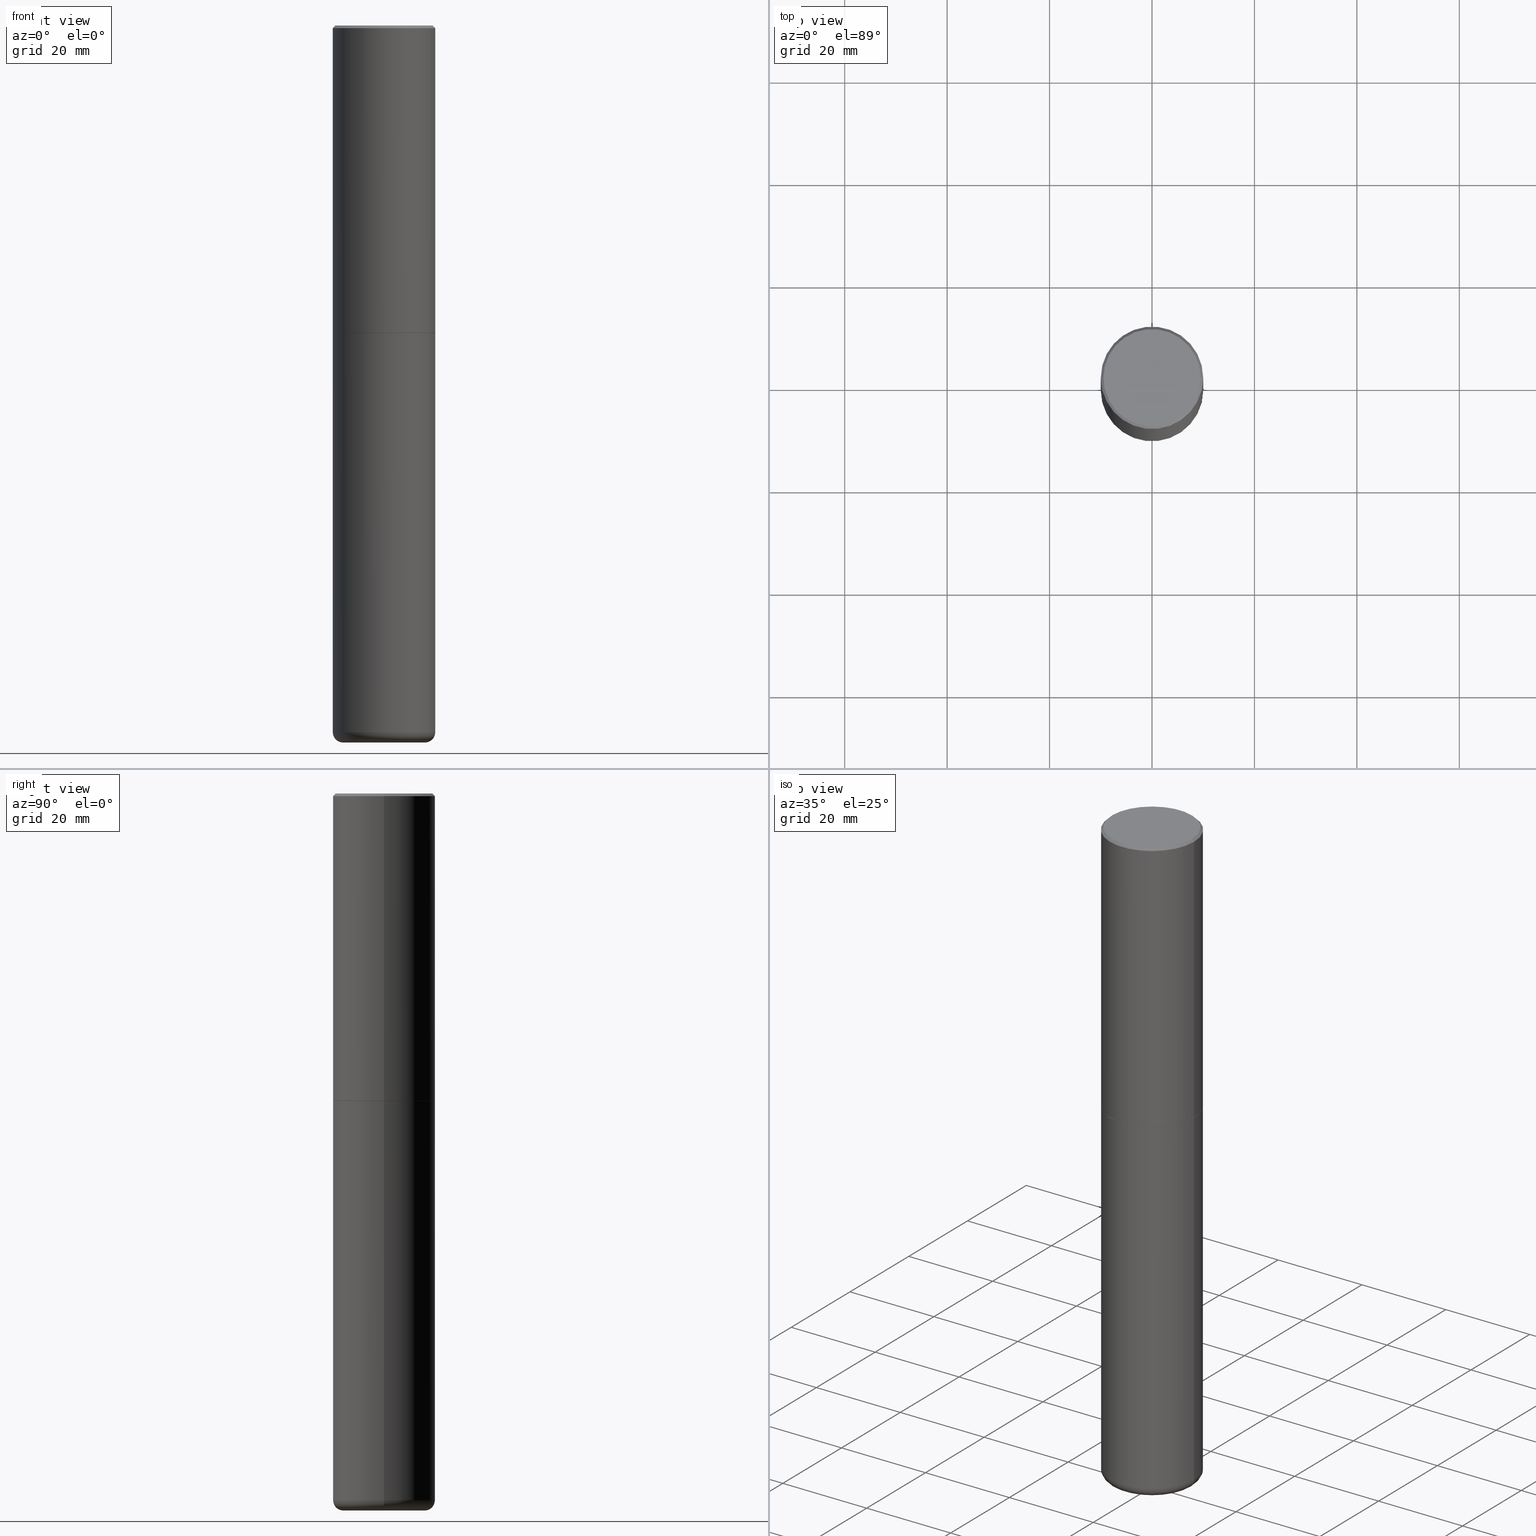
[diagram: canonical four-view strip — front | top / right | iso, engineering-drawing reading convention]
A machine part, canonical four-view strip (front | top / right | iso — engineering-drawing reading convention). The complete STEP part file that produces these views, byte-faithful:
ISO-10303-21;
HEADER;
FILE_DESCRIPTION (( 'STEP AP203' ),
    '1' );
FILE_NAME ('74855.STEP',
    '2024-05-02T19:24:18',
    ( '' ),
    ( '' ),
    'SwSTEP 2.0',
    'SolidWorks 2023',
    '' );
FILE_SCHEMA (( 'CONFIG_CONTROL_DESIGN' ));
ENDSEC;

DATA;
#1 = PERSON_AND_ORGANIZATION_ROLE ( 'design_owner' ) ;
#2 = EDGE_LOOP ( 'NONE', ( #64, #75, #69, #232 ) ) ;
#3 = EDGE_CURVE ( 'NONE', #255, #160, #9, .T. ) ;
#4 = DIRECTION ( 'NONE',  ( 0.7071067811865454633, -7.319954787623248157E-15, -0.7071067811865495711 ) ) ;
#5 = UNCERTAINTY_MEASURE_WITH_UNIT (LENGTH_MEASURE( 1.000000000000000082E-05 ), #202, 'distance_accuracy_value', 'NONE');
#6 = ADVANCED_BREP_SHAPE_REPRESENTATION ( '74855', ( #135, #137, #18 ), #203 ) ;
#7 =( NAMED_UNIT ( * ) SI_UNIT ( $, .STERADIAN. ) SOLID_ANGLE_UNIT ( ) );
#8 = ORIENTED_EDGE ( 'NONE', *, *, #52, .T. ) ;
#9 = CIRCLE ( 'NONE', #77, 0.3926999999999999935 ) ;
#10 = ADVANCED_FACE ( 'NONE', ( #67 ), #331, .T. ) ;
#11 = LOCAL_TIME ( 15, 24, 18.00000000000000000, #158 ) ;
#12 = APPROVAL_DATE_TIME ( #330, #224 ) ;
#13 = EDGE_CURVE ( 'NONE', #402, #133, #242, .T. ) ;
#14 = CARTESIAN_POINT ( 'NONE',  ( 1.328647657088446494E-28, -1.896956726206869229E-14, -5.433099999999999596 ) ) ;
#15 = DIRECTION ( 'NONE',  ( -2.445468806185136597E-29, 3.491481338843145583E-15, 1.000000000000000000 ) ) ;
#16 = DIMENSIONAL_EXPONENTS ( 1.000000000000000000, 0.000000000000000000, 0.000000000000000000, 0.000000000000000000, 0.000000000000000000, 0.000000000000000000, 0.000000000000000000 ) ;
#17 = CLOSED_SHELL ( 'NONE', ( #21, #50, #312, #307, #123, #373, #272, #262 ) ) ;
#18 = AXIS2_PLACEMENT_3D ( 'NONE', #36, #300, #416 ) ;
#19 = APPLICATION_CONTEXT ( 'configuration controlled 3d designs of mechanical parts and assemblies' ) ;
#20 = CARTESIAN_POINT ( 'NONE',  ( 1.347893496593123646E-28, -1.924434684343564878E-14, -5.511800000000000033 ) ) ;
#21 = ADVANCED_FACE ( 'NONE', ( #328 ), #157, .T. ) ;
#22 = LINE ( 'NONE', #44, #201 ) ;
#23 = FACE_OUTER_BOUND ( 'NONE', #259, .T. ) ;
#24 = CARTESIAN_POINT ( 'NONE',  ( 4.890937612370294178E-31, -6.982962677686321191E-17, -0.02000000000000008715 ) ) ;
#25 = APPROVAL_PERSON_ORGANIZATION ( #357, #197, #58 ) ;
#26 = FACE_OUTER_BOUND ( 'NONE', #34, .T. ) ;
#27 = COORDINATED_UNIVERSAL_TIME_OFFSET ( 5, 0, .BEHIND. ) ;
#28 = DIRECTION ( 'NONE',  ( 1.000000000000000000, -6.982962677686267499E-15, 0.000000000000000000 ) ) ;
#29 = ORIENTED_EDGE ( 'NONE', *, *, #322, .T. ) ;
#30 = APPLICATION_PROTOCOL_DEFINITION ( 'international standard', 'config_control_design', 1994, #19 ) ;
#31 = CIRCLE ( 'NONE', #270, 0.3937000000000002720 ) ;
#32 = CYLINDRICAL_SURFACE ( 'NONE', #289, 0.3937000000000002164 ) ;
#33 = DATE_AND_TIME ( #227, #284 ) ;
#34 = EDGE_LOOP ( 'NONE', ( #141, #226 ) ) ;
#35 = CARTESIAN_POINT ( 'NONE',  ( 5.776686413970529753E-29, -8.247577218615279626E-15, -2.362200000000000077 ) ) ;
#36 = CARTESIAN_POINT ( 'NONE',  ( 0.000000000000000000, 0.000000000000000000, 0.000000000000000000 ) ) ;
#37 = VECTOR ( 'NONE', #296, 39.37007874015748143 ) ;
#38 = DIRECTION ( 'NONE',  ( -2.445468806185136597E-29, 3.491481338843145583E-15, 1.000000000000000000 ) ) ;
#39 = VERTEX_POINT ( 'NONE', #360 ) ;
#40 = APPLICATION_CONTEXT ( 'configuration controlled 3d designs of mechanical parts and assemblies' ) ;
#41 = ORIENTED_EDGE ( 'NONE', *, *, #48, .T. ) ;
#42 = EDGE_LOOP ( 'NONE', ( #370, #29, #100, #400 ) ) ;
#43 = DIRECTION ( 'NONE',  ( 1.000000000000000000, -6.982962677686266711E-15, 0.000000000000000000 ) ) ;
#44 = CARTESIAN_POINT ( 'NONE',  ( -0.3937000000000002164, 2.797406750687515970E-15, -1.936584745033357576E-29 ) ) ;
#45 = AXIS2_PLACEMENT_3D ( 'NONE', #339, #146, #277 ) ;
#46 = CARTESIAN_POINT ( 'NONE',  ( -0.3736999999999999211, 2.644447966039789453E-15, 2.262311619753034352E-16 ) ) ;
#47 = PRODUCT_DEFINITION_FORMATION_WITH_SPECIFIED_SOURCE ( 'ANY', '', #213, .NOT_KNOWN. ) ;
#48 = EDGE_CURVE ( 'NONE', #258, #304, #314, .T. ) ;
#49 = DIRECTION ( 'NONE',  ( -1.000000000000000000, 6.982962677686266711E-15, 0.000000000000000000 ) ) ;
#50 = ADVANCED_FACE ( 'NONE', ( #320 ), #32, .T. ) ;
#51 = CARTESIAN_POINT ( 'NONE',  ( -0.3937000000000002164, -1.617216051138117513E-14, -5.433099999999999596 ) ) ;
#52 = EDGE_CURVE ( 'NONE', #234, #104, #306, .T. ) ;
#53 = FACE_OUTER_BOUND ( 'NONE', #2, .T. ) ;
#54 = AXIS2_PLACEMENT_3D ( 'NONE', #24, #411, #117 ) ;
#55 = CARTESIAN_POINT ( 'NONE',  ( 0.3937000000000000499, -1.099676962482036284E-14, -2.362200000000000077 ) ) ;
#56 = CARTESIAN_POINT ( 'NONE',  ( 5.776686413970529753E-29, -8.247577218615279626E-15, -2.362200000000000077 ) ) ;
#57 = FACE_OUTER_BOUND ( 'NONE', #363, .T. ) ;
#58 = APPROVAL_ROLE ( '' ) ;
#59 = DIRECTION ( 'NONE',  ( -2.445468806185136597E-29, 3.491481338843145583E-15, 1.000000000000000000 ) ) ;
#60 = MECHANICAL_CONTEXT ( 'NONE', #19, 'mechanical' ) ;
#61 = CIRCLE ( 'NONE', #143, 0.3937000000000001054 ) ;
#62 = CC_DESIGN_PERSON_AND_ORGANIZATION_ASSIGNMENT ( #395, #65, ( #174 ) ) ;
#63 = CIRCLE ( 'NONE', #250, 0.3150000000000000577 ) ;
#64 = ORIENTED_EDGE ( 'NONE', *, *, #399, .F. ) ;
#65 = PERSON_AND_ORGANIZATION_ROLE ( 'classification_officer' ) ;
#66 = EDGE_LOOP ( 'NONE', ( #393, #418, #74, #298 ) ) ;
#67 = FACE_OUTER_BOUND ( 'NONE', #341, .T. ) ;
#68 = CALENDAR_DATE ( 2024, 2, 5 ) ;
#69 = ORIENTED_EDGE ( 'NONE', *, *, #176, .T. ) ;
#70 = PERSON_AND_ORGANIZATION ( #321, #257 ) ;
#71 = AXIS2_PLACEMENT_3D ( 'NONE', #107, #337, #178 ) ;
#72 = CONICAL_SURFACE ( 'NONE', #54, 0.3937000000000001054, 0.7853981633974453924 ) ;
#73 = ORIENTED_EDGE ( 'NONE', *, *, #184, .T. ) ;
#74 = ORIENTED_EDGE ( 'NONE', *, *, #113, .T. ) ;
#75 = ORIENTED_EDGE ( 'NONE', *, *, #209, .T. ) ;
#76 = ORIENTED_EDGE ( 'NONE', *, *, #52, .F. ) ;
#77 = AXIS2_PLACEMENT_3D ( 'NONE', #200, #299, #228 ) ;
#78 = ADVANCED_FACE ( 'NONE', ( #346 ), #407, .T. ) ;
#79 = CARTESIAN_POINT ( 'NONE',  ( 0.000000000000000000, 0.000000000000000000, 0.000000000000000000 ) ) ;
#80 = DIRECTION ( 'NONE',  ( -2.445468806185136597E-29, 3.491481338843145583E-15, 1.000000000000000000 ) ) ;
#81 = ORIENTED_EDGE ( 'NONE', *, *, #301, .T. ) ;
#82 = CC_DESIGN_PERSON_AND_ORGANIZATION_ASSIGNMENT ( #125, #364, ( #371 ) ) ;
#83 = DIRECTION ( 'NONE',  ( -2.445468806185136877E-29, 3.491481338843145188E-15, 1.000000000000000000 ) ) ;
#84 = DIRECTION ( 'NONE',  ( -2.445468806185136597E-29, 3.491481338843145583E-15, 1.000000000000000000 ) ) ;
#85 = CARTESIAN_POINT ( 'NONE',  ( -5.532412495976664402E-45, 7.898818803016371119E-31, 2.262311619753217762E-16 ) ) ;
#86 = VECTOR ( 'NONE', #225, 39.37007874015748143 ) ;
#87 = PLANE ( 'NONE',  #204 ) ;
#88 = CARTESIAN_POINT ( 'NONE',  ( 5.776686413970529753E-29, -8.247577218615279626E-15, -2.362200000000000077 ) ) ;
#89 = DIRECTION ( 'NONE',  ( -1.000000000000000000, 7.105427357600995548E-15, 0.000000000000000000 ) ) ;
#90 = DIRECTION ( 'NONE',  ( 1.000000000000000000, -6.982962677686265922E-15, 0.000000000000000000 ) ) ;
#91 = AXIS2_PLACEMENT_3D ( 'NONE', #380, #15, #215 ) ;
#92 = DIRECTION ( 'NONE',  ( 1.000000000000000000, -6.982962677686265922E-15, 4.876176775795935793E-29 ) ) ;
#93 = CIRCLE ( 'NONE', #108, 0.3736999999999999211 ) ;
#94 = ORIENTED_EDGE ( 'NONE', *, *, #99, .T. ) ;
#95 = ADVANCED_FACE ( 'NONE', ( #281 ), #275, .T. ) ;
#96 = PERSON_AND_ORGANIZATION ( #321, #257 ) ;
#97 = COORDINATED_UNIVERSAL_TIME_OFFSET ( 5, 0, .BEHIND. ) ;
#98 = APPROVAL_STATUS ( 'not_yet_approved' ) ;
#99 = EDGE_CURVE ( 'NONE', #133, #177, #22, .T. ) ;
#100 = ORIENTED_EDGE ( 'NONE', *, *, #13, .F. ) ;
#101 = PLANE ( 'NONE',  #332 ) ;
#102 = AXIS2_PLACEMENT_3D ( 'NONE', #189, #287, #313 ) ;
#103 = LOCAL_TIME ( 15, 24, 18.00000000000000000, #97 ) ;
#104 = VERTEX_POINT ( 'NONE', #144 ) ;
#105 = ORIENTED_EDGE ( 'NONE', *, *, #366, .F. ) ;
#106 = AXIS2_PLACEMENT_3D ( 'NONE', #244, #38, #185 ) ;
#107 = CARTESIAN_POINT ( 'NONE',  ( 0.3150000000000000577, -2.116920050553986882E-14, -5.433099999999999596 ) ) ;
#108 = AXIS2_PLACEMENT_3D ( 'NONE', #181, #248, #379 ) ;
#109 = LINE ( 'NONE', #342, #369 ) ;
#110 = DIRECTION ( 'NONE',  ( 1.000000000000000000, -6.982962677686266711E-15, 0.000000000000000000 ) ) ;
#111 = FACE_OUTER_BOUND ( 'NONE', #241, .T. ) ;
#112 = AXIS2_PLACEMENT_3D ( 'NONE', #166, #295, #392 ) ;
#113 = EDGE_CURVE ( 'NONE', #160, #402, #109, .T. ) ;
#114 = DIRECTION ( 'NONE',  ( 2.445468806185136597E-29, -3.491481338843145583E-15, -1.000000000000000000 ) ) ;
#115 = DIRECTION ( 'NONE',  ( -2.445468806185136597E-29, 3.491481338843145583E-15, 1.000000000000000000 ) ) ;
#116 = CARTESIAN_POINT ( 'NONE',  ( -0.3150000000000000577, -1.673135764442437708E-14, -5.433099999999999596 ) ) ;
#117 = DIRECTION ( 'NONE',  ( -1.000000000000000000, 6.982962677686266711E-15, 0.000000000000000000 ) ) ;
#118 = CC_DESIGN_PERSON_AND_ORGANIZATION_ASSIGNMENT ( #263, #193, ( #47 ) ) ;
#119 = DIRECTION ( 'NONE',  ( -2.445468806185136597E-29, 3.491481338843145583E-15, 1.000000000000000000 ) ) ;
#120 = DIRECTION ( 'NONE',  ( -2.445468806185136597E-29, 3.491481338843145583E-15, 1.000000000000000000 ) ) ;
#121 = AXIS2_PLACEMENT_3D ( 'NONE', #79, #214, #378 ) ;
#122 = CIRCLE ( 'NONE', #334, 0.3926999999999999935 ) ;
#123 = ADVANCED_FACE ( 'NONE', ( #57 ), #247, .T. ) ;
#124 = ORIENTED_EDGE ( 'NONE', *, *, #48, .F. ) ;
#125 = PERSON_AND_ORGANIZATION ( #321, #257 ) ;
#126 = ORIENTED_EDGE ( 'NONE', *, *, #161, .F. ) ;
#127 = PERSON_AND_ORGANIZATION_ROLE ( 'creator' ) ;
#128 = ORIENTED_EDGE ( 'NONE', *, *, #176, .F. ) ;
#129 = DATE_TIME_ROLE ( 'classification_date' ) ;
#130 = EDGE_LOOP ( 'NONE', ( #365, #326, #8, #194 ) ) ;
#131 = CONICAL_SURFACE ( 'NONE', #195, 0.3937000000000001054, 0.7853981633974453924 ) ;
#132 = CARTESIAN_POINT ( 'NONE',  ( 1.347893496593123646E-28, -1.924434684343564878E-14, -5.511800000000000033 ) ) ;
#133 = VERTEX_POINT ( 'NONE', #182 ) ;
#134 = ORIENTED_EDGE ( 'NONE', *, *, #209, .F. ) ;
#135 = MANIFOLD_SOLID_BREP ( 'Body-Move/Copy2[1]', #303 ) ;
#136 = CIRCLE ( 'NONE', #179, 0.07870000000000024198 ) ;
#137 = MANIFOLD_SOLID_BREP ( 'Body-Move/Copy2[2]', #17 ) ;
#138 = APPROVAL_PERSON_ORGANIZATION ( #294, #293, #199 ) ;
#139 = CC_DESIGN_PERSON_AND_ORGANIZATION_ASSIGNMENT ( #96, #127, ( #47 ) ) ;
#140 = DIRECTION ( 'NONE',  ( -2.445468806185136597E-29, 3.491481338843145583E-15, 1.000000000000000000 ) ) ;
#141 = ORIENTED_EDGE ( 'NONE', *, *, #237, .T. ) ;
#142 = PRODUCT_RELATED_PRODUCT_CATEGORY ( 'detail', '', ( #213 ) ) ;
#143 = AXIS2_PLACEMENT_3D ( 'NONE', #14, #372, #43 ) ;
#144 = CARTESIAN_POINT ( 'NONE',  ( 0.3937000000000002164, -2.171875966827377866E-14, -5.433099999999999596 ) ) ;
#145 = VECTOR ( 'NONE', #406, 39.37007874015748143 ) ;
#146 = DIRECTION ( 'NONE',  ( -2.445468806185136597E-29, 3.491481338843145583E-15, 1.000000000000000000 ) ) ;
#147 = CARTESIAN_POINT ( 'NONE',  ( 5.774240945164344150E-29, -8.244085737276435042E-15, -2.361199999999999743 ) ) ;
#148 = CARTESIAN_POINT ( 'NONE',  ( 5.776686413970529753E-29, -8.247577218615279626E-15, -2.362200000000000077 ) ) ;
#149 = DIRECTION ( 'NONE',  ( -2.445468806185136877E-29, 3.491481338843145188E-15, 1.000000000000000000 ) ) ;
#150 = CARTESIAN_POINT ( 'NONE',  ( -0.3926999999999999935, -5.451977440937141868E-15, -2.362200000000000077 ) ) ;
#151 = ADVANCED_FACE ( 'NONE', ( #274 ), #164, .T. ) ;
#152 = DIRECTION ( 'NONE',  ( 1.000000000000000000, -6.982962677686266711E-15, 4.877734241229876808E-29 ) ) ;
#153 = DIRECTION ( 'NONE',  ( -2.445468806185136597E-29, 3.491481338843145583E-15, 1.000000000000000000 ) ) ;
#154 = PLANE ( 'NONE',  #343 ) ;
#155 = APPROVAL_STATUS ( 'not_yet_approved' ) ;
#156 = ORIENTED_EDGE ( 'NONE', *, *, #170, .T. ) ;
#157 = CONICAL_SURFACE ( 'NONE', #256, 0.3926999999999999935, 0.7853981633975507526 ) ;
#158 = COORDINATED_UNIVERSAL_TIME_OFFSET ( 5, 0, .BEHIND. ) ;
#159 = DATE_TIME_ROLE ( 'creation_date' ) ;
#160 = VERTEX_POINT ( 'NONE', #305 ) ;
#161 = EDGE_CURVE ( 'NONE', #177, #210, #186, .T. ) ;
#162 = VERTEX_POINT ( 'NONE', #340 ) ;
#163 = DIRECTION ( 'NONE',  ( 0.7071067811866199593, -2.468850131083015945E-15, 0.7071067811864750752 ) ) ;
#164 = TOROIDAL_SURFACE ( 'NONE', #45, 0.3150000000000000577, 0.07870000000000024198 ) ;
#165 =( NAMED_UNIT ( * ) PLANE_ANGLE_UNIT ( ) SI_UNIT ( $, .RADIAN. ) );
#166 = CARTESIAN_POINT ( 'NONE',  ( 0.000000000000000000, 0.000000000000000000, 0.000000000000000000 ) ) ;
#167 = FACE_OUTER_BOUND ( 'NONE', #198, .T. ) ;
#168 = CC_DESIGN_APPROVAL ( #224, ( #174 ) ) ;
#169 = ORIENTED_EDGE ( 'NONE', *, *, #273, .T. ) ;
#170 = EDGE_CURVE ( 'NONE', #234, #162, #404, .T. ) ;
#171 = LINE ( 'NONE', #216, #239 ) ;
#172 = CARTESIAN_POINT ( 'NONE',  ( 0.000000000000000000, 0.000000000000000000, 0.000000000000000000 ) ) ;
#173 = ADVANCED_FACE ( 'NONE', ( #167 ), #101, .T. ) ;
#174 = SECURITY_CLASSIFICATION ( '', '', #391 ) ;
#175 = ORIENTED_EDGE ( 'NONE', *, *, #349, .F. ) ;
#176 = EDGE_CURVE ( 'NONE', #210, #177, #218, .T. ) ;
#177 = VERTEX_POINT ( 'NONE', #253 ) ;
#178 = DIRECTION ( 'NONE',  ( 1.000000000000000000, -6.982962677686273810E-15, 0.000000000000000000 ) ) ;
#179 = AXIS2_PLACEMENT_3D ( 'NONE', #116, #382, #89 ) ;
#180 = AXIS2_PLACEMENT_3D ( 'NONE', #88, #153, #311 ) ;
#181 = CARTESIAN_POINT ( 'NONE',  ( -5.532412495976664402E-45, 7.898818803016371119E-31, 2.262311619753217762E-16 ) ) ;
#182 = CARTESIAN_POINT ( 'NONE',  ( -0.3937000000000002720, -1.359550931339130834E-15, -2.361199999999999743 ) ) ;
#183 = LINE ( 'NONE', #351, #86 ) ;
#184 = EDGE_CURVE ( 'NONE', #162, #325, #136, .T. ) ;
#185 = DIRECTION ( 'NONE',  ( 1.000000000000000000, -6.982962677686266711E-15, 0.000000000000000000 ) ) ;
#186 = CIRCLE ( 'NONE', #106, 0.3937000000000001054 ) ;
#187 =( LENGTH_UNIT ( ) NAMED_UNIT ( * ) SI_UNIT ( $, .METRE. ) );
#188 = DIRECTION ( 'NONE',  ( -2.445468806185136597E-29, 3.491481338843145583E-15, 1.000000000000000000 ) ) ;
#189 = CARTESIAN_POINT ( 'NONE',  ( 2.609533152651356620E-15, 0.3736999999999999211, -1.191650995338022328E-15 ) ) ;
#190 = DIRECTION ( 'NONE',  ( -2.445468806185136597E-29, 3.491481338843145583E-15, 1.000000000000000000 ) ) ;
#191 = APPROVAL_DATE_TIME ( #33, #293 ) ;
#192 = DIRECTION ( 'NONE',  ( 1.000000000000000000, -6.982962677686265133E-15, 0.000000000000000000 ) ) ;
#193 = PERSON_AND_ORGANIZATION_ROLE ( 'design_supplier' ) ;
#194 = ORIENTED_EDGE ( 'NONE', *, *, #230, .F. ) ;
#195 = AXIS2_PLACEMENT_3D ( 'NONE', #278, #114, #49 ) ;
#196 = CALENDAR_DATE ( 2024, 2, 5 ) ;
#197 = APPROVAL ( #155, 'UNSPECIFIED' ) ;
#198 = EDGE_LOOP ( 'NONE', ( #236, #376 ) ) ;
#199 = APPROVAL_ROLE ( '' ) ;
#200 = CARTESIAN_POINT ( 'NONE',  ( 5.776686413970529753E-29, -8.247577218615279626E-15, -2.362200000000000077 ) ) ;
#201 = VECTOR ( 'NONE', #149, 39.37007874015748143 ) ;
#202 =( CONVERSION_BASED_UNIT ( 'INCH', #233 ) LENGTH_UNIT ( ) NAMED_UNIT ( #16 ) );
#203 =( GEOMETRIC_REPRESENTATION_CONTEXT ( 3 ) GLOBAL_UNCERTAINTY_ASSIGNED_CONTEXT ( ( #5 ) ) GLOBAL_UNIT_ASSIGNED_CONTEXT ( ( #202, #165, #7 ) ) REPRESENTATION_CONTEXT ( 'NONE', 'WORKASPACE' ) );
#204 = AXIS2_PLACEMENT_3D ( 'NONE', #219, #381, #221 ) ;
#205 = ORIENTED_EDGE ( 'NONE', *, *, #366, .T. ) ;
#206 = EDGE_CURVE ( 'NONE', #402, #210, #350, .T. ) ;
#207 = CARTESIAN_POINT ( 'NONE',  ( -0.3937000000000001054, 2.797406750687515181E-15, -1.936584745033357016E-29 ) ) ;
#208 = ORIENTED_EDGE ( 'NONE', *, *, #13, .T. ) ;
#209 = EDGE_CURVE ( 'NONE', #39, #210, #171, .T. ) ;
#210 = VERTEX_POINT ( 'NONE', #415 ) ;
#211 = CIRCLE ( 'NONE', #276, 0.3937000000000001054 ) ;
#212 = ORIENTED_EDGE ( 'NONE', *, *, #161, .T. ) ;
#213 = PRODUCT ( '74855', '74855', '', ( #60 ) ) ;
#214 = DIRECTION ( 'NONE',  ( -2.445468806185136597E-29, 3.491481338843145583E-15, 1.000000000000000000 ) ) ;
#215 = DIRECTION ( 'NONE',  ( 1.000000000000000000, -6.982962677686266711E-15, 4.876176775795935793E-29 ) ) ;
#216 = CARTESIAN_POINT ( 'NONE',  ( 0.3937000000000001054, -2.770807688499516128E-15, -0.02000000000000008715 ) ) ;
#217 = FACE_OUTER_BOUND ( 'NONE', #66, .T. ) ;
#218 = CIRCLE ( 'NONE', #223, 0.3937000000000001054 ) ;
#219 = CARTESIAN_POINT ( 'NONE',  ( 5.776686413970529753E-29, -8.247577218615279626E-15, -2.362200000000000077 ) ) ;
#220 = CC_DESIGN_DATE_AND_TIME_ASSIGNMENT ( #297, #159, ( #371 ) ) ;
#221 = DIRECTION ( 'NONE',  ( -1.000000000000000000, 6.982962677686265922E-15, -4.876176775795935793E-29 ) ) ;
#222 = PLANE ( 'NONE',  #102 ) ;
#223 = AXIS2_PLACEMENT_3D ( 'NONE', #384, #188, #316 ) ;
#224 = APPROVAL ( #98, 'UNSPECIFIED' ) ;
#225 = DIRECTION ( 'NONE',  ( -0.7071067811865454633, 2.468850131082235367E-15, -0.7071067811865495711 ) ) ;
#226 = ORIENTED_EDGE ( 'NONE', *, *, #399, .T. ) ;
#227 = CALENDAR_DATE ( 2024, 2, 5 ) ;
#228 = DIRECTION ( 'NONE',  ( 1.000000000000000000, -6.982962677686265133E-15, 0.000000000000000000 ) ) ;
#229 = ORIENTED_EDGE ( 'NONE', *, *, #206, .F. ) ;
#230 = EDGE_CURVE ( 'NONE', #325, #104, #61, .T. ) ;
#231 = CIRCLE ( 'NONE', #386, 0.3736999999999999211 ) ;
#232 = ORIENTED_EDGE ( 'NONE', *, *, #301, .F. ) ;
#233 = LENGTH_MEASURE_WITH_UNIT ( LENGTH_MEASURE( 0.02539999999999999897 ), #187 );
#234 = VERTEX_POINT ( 'NONE', #280 ) ;
#235 = APPROVAL_ROLE ( '' ) ;
#236 = ORIENTED_EDGE ( 'NONE', *, *, #170, .F. ) ;
#237 = EDGE_CURVE ( 'NONE', #397, #39, #231, .T. ) ;
#238 = ORIENTED_EDGE ( 'NONE', *, *, #3, .F. ) ;
#239 = VECTOR ( 'NONE', #4, 39.37007874015748143 ) ;
#240 = LOCAL_TIME ( 15, 24, 18.00000000000000000, #27 ) ;
#241 = EDGE_LOOP ( 'NONE', ( #292, #238 ) ) ;
#242 = CIRCLE ( 'NONE', #362, 0.3937000000000002720 ) ;
#243 = EDGE_LOOP ( 'NONE', ( #156, #73, #271, #76 ) ) ;
#244 = CARTESIAN_POINT ( 'NONE',  ( 4.890937612370294178E-31, -6.982962677686321191E-17, -0.02000000000000008715 ) ) ;
#245 = CARTESIAN_POINT ( 'NONE',  ( -0.3926999999999999935, -5.457275895285365059E-15, -2.362200000000000077 ) ) ;
#246 = EDGE_CURVE ( 'NONE', #325, #304, #288, .T. ) ;
#247 = CYLINDRICAL_SURFACE ( 'NONE', #91, 0.3937000000000002164 ) ;
#248 = DIRECTION ( 'NONE',  ( -2.445468806185136597E-29, 3.491481338843145583E-15, 1.000000000000000000 ) ) ;
#249 = DIRECTION ( 'NONE',  ( 1.000000000000000000, -6.982962677686273810E-15, 0.000000000000000000 ) ) ;
#250 = AXIS2_PLACEMENT_3D ( 'NONE', #20, #347, #412 ) ;
#251 = LINE ( 'NONE', #245, #145 ) ;
#252 = CARTESIAN_POINT ( 'NONE',  ( 0.3937000000000001054, -2.749192406205084005E-15, 1.919750796630860452E-29 ) ) ;
#253 = CARTESIAN_POINT ( 'NONE',  ( -0.3937000000000001054, 2.679362779428220707E-15, -0.02000000000000008715 ) ) ;
#254 = DIRECTION ( 'NONE',  ( -2.445468806185136597E-29, 3.491481338843145583E-15, 1.000000000000000000 ) ) ;
#255 = VERTEX_POINT ( 'NONE', #150 ) ;
#256 = AXIS2_PLACEMENT_3D ( 'NONE', #56, #120, #192 ) ;
#257 = ORGANIZATION ( 'UNSPECIFIED', 'UNSPECIFIED', '' ) ;
#258 = VERTEX_POINT ( 'NONE', #55 ) ;
#259 = EDGE_LOOP ( 'NONE', ( #134, #266, #81, #212 ) ) ;
#260 = DATE_AND_TIME ( #291, #11 ) ;
#261 = DIRECTION ( 'NONE',  ( 1.000000000000000000, -6.982962677686265922E-15, 0.000000000000000000 ) ) ;
#262 = ADVANCED_FACE ( 'NONE', ( #26 ), #222, .F. ) ;
#263 = PERSON_AND_ORGANIZATION ( #321, #257 ) ;
#264 = ORIENTED_EDGE ( 'NONE', *, *, #348, .T. ) ;
#265 = PERSON_AND_ORGANIZATION ( #321, #257 ) ;
#266 = ORIENTED_EDGE ( 'NONE', *, *, #237, .F. ) ;
#267 = DESIGN_CONTEXT ( 'detailed design', #40, 'design' ) ;
#268 = CALENDAR_DATE ( 2024, 2, 5 ) ;
#269 = EDGE_LOOP ( 'NONE', ( #208, #94, #128, #229 ) ) ;
#270 = AXIS2_PLACEMENT_3D ( 'NONE', #147, #254, #90 ) ;
#271 = ORIENTED_EDGE ( 'NONE', *, *, #348, .F. ) ;
#272 = ADVANCED_FACE ( 'NONE', ( #111 ), #154, .F. ) ;
#273 = EDGE_CURVE ( 'NONE', #133, #402, #31, .T. ) ;
#274 = FACE_OUTER_BOUND ( 'NONE', #243, .T. ) ;
#275 = TOROIDAL_SURFACE ( 'NONE', #410, 0.3150000000000000577, 0.07870000000000024198 ) ;
#276 = AXIS2_PLACEMENT_3D ( 'NONE', #413, #119, #110 ) ;
#277 = DIRECTION ( 'NONE',  ( 1.000000000000000000, -6.982962677686263555E-15, 4.883557194083111219E-29 ) ) ;
#278 = CARTESIAN_POINT ( 'NONE',  ( 4.890937612370294178E-31, -6.982962677686321191E-17, -0.02000000000000008715 ) ) ;
#279 = CARTESIAN_POINT ( 'NONE',  ( 1.347893496593123646E-28, -1.924434684343564878E-14, -5.511800000000000033 ) ) ;
#280 = CARTESIAN_POINT ( 'NONE',  ( 0.3150000000000000577, -2.144398008690682532E-14, -5.511800000000000033 ) ) ;
#281 = FACE_OUTER_BOUND ( 'NONE', #130, .T. ) ;
#282 = FACE_OUTER_BOUND ( 'NONE', #368, .T. ) ;
#283 = DIRECTION ( 'NONE',  ( -2.438088387897960049E-29, 3.491481338843145188E-15, 1.000000000000000000 ) ) ;
#284 = LOCAL_TIME ( 15, 24, 18.00000000000000000, #324 ) ;
#285 = DIRECTION ( 'NONE',  ( -1.000000000000000000, 6.982962677686265922E-15, -4.876176775795935793E-29 ) ) ;
#286 = DIRECTION ( 'NONE',  ( -2.445468806185136597E-29, 3.491481338843145583E-15, 1.000000000000000000 ) ) ;
#287 = DIRECTION ( 'NONE',  ( 2.438088387897960049E-29, -3.491481338843145188E-15, -1.000000000000000000 ) ) ;
#288 = LINE ( 'NONE', #207, #417 ) ;
#289 = AXIS2_PLACEMENT_3D ( 'NONE', #172, #140, #336 ) ;
#290 = CC_DESIGN_APPROVAL ( #197, ( #47 ) ) ;
#291 = CALENDAR_DATE ( 2024, 2, 5 ) ;
#292 = ORIENTED_EDGE ( 'NONE', *, *, #361, .F. ) ;
#293 = APPROVAL ( #319, 'UNSPECIFIED' ) ;
#294 = PERSON_AND_ORGANIZATION ( #321, #257 ) ;
#295 = DIRECTION ( 'NONE',  ( -2.445468806185136597E-29, 3.491481338843145583E-15, 1.000000000000000000 ) ) ;
#296 = DIRECTION ( 'NONE',  ( -2.445468806185136877E-29, 3.491481338843145188E-15, 1.000000000000000000 ) ) ;
#297 = DATE_AND_TIME ( #268, #240 ) ;
#298 = ORIENTED_EDGE ( 'NONE', *, *, #273, .F. ) ;
#299 = DIRECTION ( 'NONE',  ( -2.445468806185136597E-29, 3.491481338843145583E-15, 1.000000000000000000 ) ) ;
#300 = DIRECTION ( 'NONE',  ( 0.000000000000000000, 0.000000000000000000, 1.000000000000000000 ) ) ;
#301 = EDGE_CURVE ( 'NONE', #397, #177, #183, .T. ) ;
#302 = CC_DESIGN_APPROVAL ( #293, ( #371 ) ) ;
#303 = CLOSED_SHELL ( 'NONE', ( #10, #151, #409, #78, #95, #173 ) ) ;
#304 = VERTEX_POINT ( 'NONE', #315 ) ;
#305 = CARTESIAN_POINT ( 'NONE',  ( 0.3926999999999999935, -1.098978666214267525E-14, -2.362200000000000077 ) ) ;
#306 = CIRCLE ( 'NONE', #71, 0.07870000000000024198 ) ;
#307 = ADVANCED_FACE ( 'NONE', ( #23 ), #72, .T. ) ;
#308 = CIRCLE ( 'NONE', #180, 0.3937000000000000499 ) ;
#309 = CARTESIAN_POINT ( 'NONE',  ( 0.3937000000000002720, -1.099327814348151984E-14, -2.361199999999999743 ) ) ;
#310 = PRODUCT_DEFINITION_SHAPE ( 'NONE', 'NONE',  #371 ) ;
#311 = DIRECTION ( 'NONE',  ( 1.000000000000000000, -6.982962677686267499E-15, 0.000000000000000000 ) ) ;
#312 = ADVANCED_FACE ( 'NONE', ( #53 ), #131, .T. ) ;
#313 = DIRECTION ( 'NONE',  ( -1.000000000000000000, 6.982962677686265922E-15, -4.876176775795935793E-29 ) ) ;
#314 = CIRCLE ( 'NONE', #352, 0.3937000000000000499 ) ;
#315 = CARTESIAN_POINT ( 'NONE',  ( -0.3937000000000000499, -1.081116548965446959E-14, -2.362200000000000077 ) ) ;
#316 = DIRECTION ( 'NONE',  ( 1.000000000000000000, -6.982962677686266711E-15, 0.000000000000000000 ) ) ;
#317 = CARTESIAN_POINT ( 'NONE',  ( 5.776686413970529753E-29, -8.247577218615279626E-15, -2.362200000000000077 ) ) ;
#318 = ORIENTED_EDGE ( 'NONE', *, *, #349, .T. ) ;
#319 = APPROVAL_STATUS ( 'not_yet_approved' ) ;
#320 = FACE_OUTER_BOUND ( 'NONE', #269, .T. ) ;
#321 = PERSON ( 'UNSPECIFIED', 'UNSPECIFIED', 'UNSPECIFIED', ('UNSPECIFIED'), ('UNSPECIFIED'), ('UNSPECIFIED') ) ;
#322 = EDGE_CURVE ( 'NONE', #255, #133, #251, .T. ) ;
#323 = CC_DESIGN_SECURITY_CLASSIFICATION ( #174, ( #47 ) ) ;
#324 = COORDINATED_UNIVERSAL_TIME_OFFSET ( 5, 0, .BEHIND. ) ;
#325 = VERTEX_POINT ( 'NONE', #51 ) ;
#326 = ORIENTED_EDGE ( 'NONE', *, *, #403, .T. ) ;
#327 = DATE_AND_TIME ( #196, #103 ) ;
#328 = FACE_OUTER_BOUND ( 'NONE', #42, .T. ) ;
#329 = CC_DESIGN_PERSON_AND_ORGANIZATION_ASSIGNMENT ( #70, #1, ( #213 ) ) ;
#330 = DATE_AND_TIME ( #68, #353 ) ;
#331 = CYLINDRICAL_SURFACE ( 'NONE', #112, 0.3937000000000001054 ) ;
#332 = AXIS2_PLACEMENT_3D ( 'NONE', #132, #335, #285 ) ;
#333 = CARTESIAN_POINT ( 'NONE',  ( 0.3937000000000002164, -2.749192406205084794E-15, 1.919750796630861012E-29 ) ) ;
#334 = AXIS2_PLACEMENT_3D ( 'NONE', #148, #385, #408 ) ;
#335 = DIRECTION ( 'NONE',  ( 2.438088387897960049E-29, -3.491481338843145188E-15, -1.000000000000000000 ) ) ;
#336 = DIRECTION ( 'NONE',  ( 1.000000000000000000, -6.982962677686266711E-15, 4.876176775795935793E-29 ) ) ;
#337 = DIRECTION ( 'NONE',  ( -6.982962677686266711E-15, -1.000000000000000000, 3.491481338843145583E-15 ) ) ;
#338 = DIRECTION ( 'NONE',  ( 1.000000000000000000, -6.982962677686263555E-15, 4.883557194083111219E-29 ) ) ;
#339 = CARTESIAN_POINT ( 'NONE',  ( 1.328647657088446494E-28, -1.896956726206869229E-14, -5.433099999999999596 ) ) ;
#340 = CARTESIAN_POINT ( 'NONE',  ( -0.3150000000000000577, -1.658914886858625593E-14, -5.511800000000000033 ) ) ;
#341 = EDGE_LOOP ( 'NONE', ( #264, #355, #124, #105 ) ) ;
#342 = CARTESIAN_POINT ( 'NONE',  ( 0.3926999999999999935, -1.098978666214267525E-14, -2.362200000000000077 ) ) ;
#343 = AXIS2_PLACEMENT_3D ( 'NONE', #317, #283, #92 ) ;
#344 = DIRECTION ( 'NONE',  ( 1.000000000000000000, -6.982962677686265133E-15, 0.000000000000000000 ) ) ;
#345 = APPROVAL_PERSON_ORGANIZATION ( #265, #224, #235 ) ;
#346 = FACE_OUTER_BOUND ( 'NONE', #374, .T. ) ;
#347 = DIRECTION ( 'NONE',  ( -2.445468806185136597E-29, 3.491481338843145583E-15, 1.000000000000000000 ) ) ;
#348 = EDGE_CURVE ( 'NONE', #104, #325, #211, .T. ) ;
#349 = EDGE_CURVE ( 'NONE', #304, #258, #308, .T. ) ;
#350 = LINE ( 'NONE', #333, #37 ) ;
#351 = CARTESIAN_POINT ( 'NONE',  ( -0.3937000000000001054, 2.679362779428220707E-15, -0.02000000000000008715 ) ) ;
#352 = AXIS2_PLACEMENT_3D ( 'NONE', #35, #59, #28 ) ;
#353 = LOCAL_TIME ( 15, 24, 18.00000000000000000, #367 ) ;
#354 = DIRECTION ( 'NONE',  ( -2.445468806185136877E-29, 3.491481338843145188E-15, 1.000000000000000000 ) ) ;
#355 = ORIENTED_EDGE ( 'NONE', *, *, #246, .T. ) ;
#356 = CC_DESIGN_DATE_AND_TIME_ASSIGNMENT ( #327, #129, ( #174 ) ) ;
#357 = PERSON_AND_ORGANIZATION ( #321, #257 ) ;
#358 = ORIENTED_EDGE ( 'NONE', *, *, #206, .T. ) ;
#359 = APPLICATION_PROTOCOL_DEFINITION ( 'international standard', 'config_control_design', 1994, #40 ) ;
#360 = CARTESIAN_POINT ( 'NONE',  ( 0.3736999999999999211, -2.667287895133367964E-15, 2.262311619753402158E-16 ) ) ;
#361 = EDGE_CURVE ( 'NONE', #160, #255, #122, .T. ) ;
#362 = AXIS2_PLACEMENT_3D ( 'NONE', #414, #190, #261 ) ;
#363 = EDGE_LOOP ( 'NONE', ( #387, #169, #358, #126 ) ) ;
#364 = PERSON_AND_ORGANIZATION_ROLE ( 'creator' ) ;
#365 = ORIENTED_EDGE ( 'NONE', *, *, #184, .F. ) ;
#366 = EDGE_CURVE ( 'NONE', #104, #258, #377, .T. ) ;
#367 = COORDINATED_UNIVERSAL_TIME_OFFSET ( 5, 0, .BEHIND. ) ;
#368 = EDGE_LOOP ( 'NONE', ( #41, #318 ) ) ;
#369 = VECTOR ( 'NONE', #163, 39.37007874015748143 ) ;
#370 = ORIENTED_EDGE ( 'NONE', *, *, #361, .T. ) ;
#371 = PRODUCT_DEFINITION ( 'UNKNOWN', '', #47, #267 ) ;
#372 = DIRECTION ( 'NONE',  ( -2.445468806185136597E-29, 3.491481338843145583E-15, 1.000000000000000000 ) ) ;
#373 = ADVANCED_FACE ( 'NONE', ( #217 ), #388, .T. ) ;
#374 = EDGE_LOOP ( 'NONE', ( #405, #396, #205, #175 ) ) ;
#375 = CARTESIAN_POINT ( 'NONE',  ( 1.328647657088446494E-28, -1.896956726206869229E-14, -5.433099999999999596 ) ) ;
#376 = ORIENTED_EDGE ( 'NONE', *, *, #403, .F. ) ;
#377 = LINE ( 'NONE', #252, #394 ) ;
#378 = DIRECTION ( 'NONE',  ( 1.000000000000000000, -6.982962677686266711E-15, 4.876176775795935793E-29 ) ) ;
#379 = DIRECTION ( 'NONE',  ( 1.000000000000000000, -6.982962677686266711E-15, 4.877734241229876808E-29 ) ) ;
#380 = CARTESIAN_POINT ( 'NONE',  ( 0.000000000000000000, 0.000000000000000000, 0.000000000000000000 ) ) ;
#381 = DIRECTION ( 'NONE',  ( 2.438088387897960049E-29, -3.491481338843145188E-15, -1.000000000000000000 ) ) ;
#382 = DIRECTION ( 'NONE',  ( 7.105427357601001859E-15, 1.000000000000000000, -3.491481338843145583E-15 ) ) ;
#383 = CARTESIAN_POINT ( 'NONE',  ( 5.776686413970529753E-29, -8.247577218615279626E-15, -2.362200000000000077 ) ) ;
#384 = CARTESIAN_POINT ( 'NONE',  ( 4.890937612370294178E-31, -6.982962677686321191E-17, -0.02000000000000008715 ) ) ;
#385 = DIRECTION ( 'NONE',  ( -2.445468806185136597E-29, 3.491481338843145583E-15, 1.000000000000000000 ) ) ;
#386 = AXIS2_PLACEMENT_3D ( 'NONE', #85, #115, #152 ) ;
#387 = ORIENTED_EDGE ( 'NONE', *, *, #99, .F. ) ;
#388 = CONICAL_SURFACE ( 'NONE', #389, 0.3926999999999999935, 0.7853981633975507526 ) ;
#389 = AXIS2_PLACEMENT_3D ( 'NONE', #383, #286, #344 ) ;
#390 = APPROVAL_DATE_TIME ( #260, #197 ) ;
#391 = SECURITY_CLASSIFICATION_LEVEL ( 'unclassified' ) ;
#392 = DIRECTION ( 'NONE',  ( 1.000000000000000000, -6.982962677686266711E-15, 4.876176775795935793E-29 ) ) ;
#393 = ORIENTED_EDGE ( 'NONE', *, *, #322, .F. ) ;
#394 = VECTOR ( 'NONE', #83, 39.37007874015748143 ) ;
#395 = PERSON_AND_ORGANIZATION ( #321, #257 ) ;
#396 = ORIENTED_EDGE ( 'NONE', *, *, #230, .T. ) ;
#397 = VERTEX_POINT ( 'NONE', #46 ) ;
#398 = AXIS2_PLACEMENT_3D ( 'NONE', #279, #84, #249 ) ;
#399 = EDGE_CURVE ( 'NONE', #39, #397, #93, .T. ) ;
#400 = ORIENTED_EDGE ( 'NONE', *, *, #113, .F. ) ;
#401 = SHAPE_DEFINITION_REPRESENTATION ( #310, #6 ) ;
#402 = VERTEX_POINT ( 'NONE', #309 ) ;
#403 = EDGE_CURVE ( 'NONE', #162, #234, #63, .T. ) ;
#404 = CIRCLE ( 'NONE', #398, 0.3150000000000000577 ) ;
#405 = ORIENTED_EDGE ( 'NONE', *, *, #246, .F. ) ;
#406 = DIRECTION ( 'NONE',  ( -0.7071067811866199593, 7.493145998870616062E-15, 0.7071067811864750752 ) ) ;
#407 = CYLINDRICAL_SURFACE ( 'NONE', #121, 0.3937000000000001054 ) ;
#408 = DIRECTION ( 'NONE',  ( 1.000000000000000000, -6.982962677686265133E-15, 0.000000000000000000 ) ) ;
#409 = ADVANCED_FACE ( 'NONE', ( #282 ), #87, .F. ) ;
#410 = AXIS2_PLACEMENT_3D ( 'NONE', #375, #80, #338 ) ;
#411 = DIRECTION ( 'NONE',  ( 2.445468806185136597E-29, -3.491481338843145583E-15, -1.000000000000000000 ) ) ;
#412 = DIRECTION ( 'NONE',  ( 1.000000000000000000, -6.982962677686273810E-15, 0.000000000000000000 ) ) ;
#413 = CARTESIAN_POINT ( 'NONE',  ( 1.328647657088446494E-28, -1.896956726206869229E-14, -5.433099999999999596 ) ) ;
#414 = CARTESIAN_POINT ( 'NONE',  ( 5.774240945164344150E-29, -8.244085737276435042E-15, -2.361199999999999743 ) ) ;
#415 = CARTESIAN_POINT ( 'NONE',  ( 0.3937000000000001054, -2.770807688499516128E-15, -0.02000000000000008715 ) ) ;
#416 = DIRECTION ( 'NONE',  ( 1.000000000000000000, 0.000000000000000000, 0.000000000000000000 ) ) ;
#417 = VECTOR ( 'NONE', #354, 39.37007874015748143 ) ;
#418 = ORIENTED_EDGE ( 'NONE', *, *, #3, .T. ) ;
ENDSEC;
END-ISO-10303-21;
